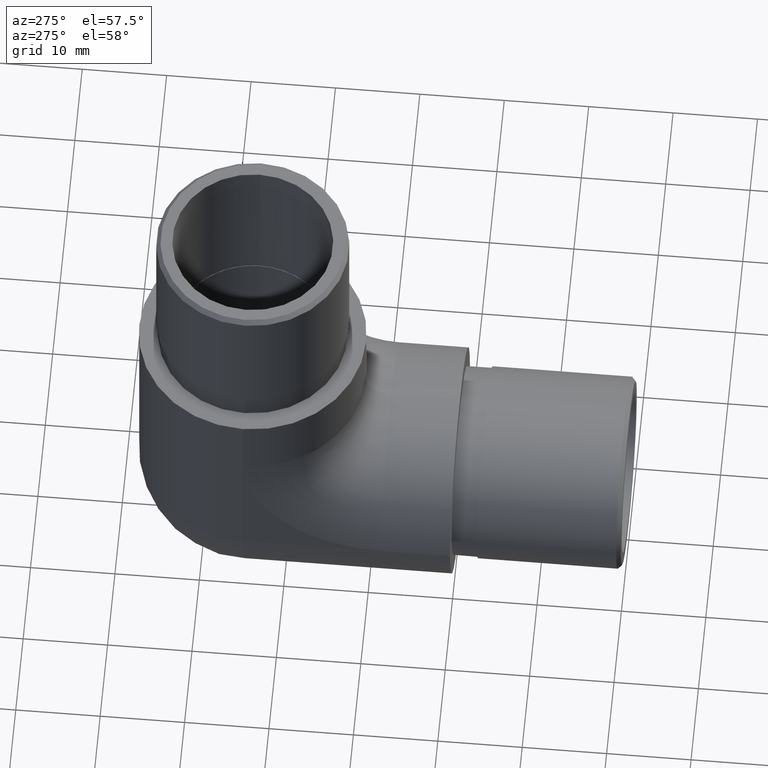
[diagram: clean part render]
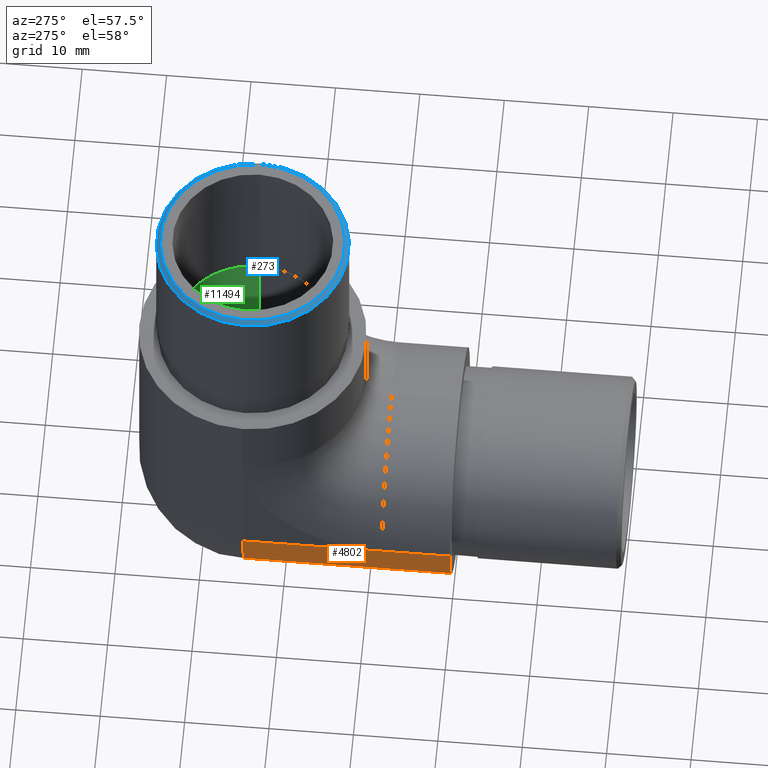
[diagram: same view with three faces highlighted in distinct colors, each labeled with its STEP entity id]
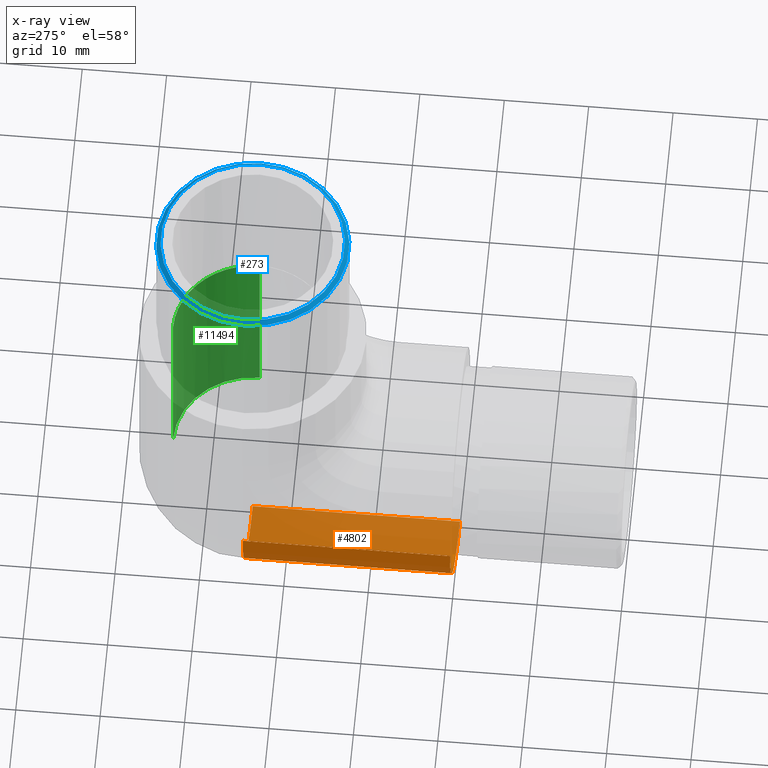
[diagram: x-ray of the same camera — body ghosted, the three highlighted faces saturated]
A machine part, auxiliary view with three faces highlighted in distinct colors.
The next image is the same camera in x-ray (body ghosted, the three faces saturated) — at least one of them is partly hidden behind the body in this view.
Their STEP definitions:

[orange] entity #4802 — the highlighted cylindrical surface (partial cylindrical patch) has radius 13.45 mm, axis along (0, 1, 0).
#6 = CARTESIAN_POINT ( 'NONE',  ( 1.734723475976807100E-015, 24.54999999999999700, -2.602085213965210200E-015 ) ) ;
#115 = CARTESIAN_POINT ( 'NONE',  ( 8.673617379884039400E-016, 0.0000000000000000000, -1.734723475976807100E-015 ) ) ;
#123 = VERTEX_POINT ( 'NONE', #3064 ) ;
#160 = VERTEX_POINT ( 'NONE', #924 ) ;
#340 = DIRECTION ( 'NONE',  ( 0.0000000000000000000, 0.0000000000000000000, 1.000000000000000000 ) ) ;
#924 = CARTESIAN_POINT ( 'NONE',  ( -1.734723475976807100E-015, 0.0000000000000000000, -13.45000000000000300 ) ) ;
#1179 = DIRECTION ( 'NONE',  ( -0.0000000000000000000, -1.000000000000000000, -0.0000000000000000000 ) ) ;
#1436 = CARTESIAN_POINT ( 'NONE',  ( -13.44999999999999900, 0.0000000000000000000, -8.673617379884032500E-016 ) ) ;
#1985 = CARTESIAN_POINT ( 'NONE',  ( -13.44999999999999900, 8.099999999999999600, -8.673617379884032500E-016 ) ) ;
#2006 = DIRECTION ( 'NONE',  ( -0.0000000000000000000, -1.000000000000000000, -0.0000000000000000000 ) ) ;
#2804 = EDGE_CURVE ( 'NONE', #160, #123, #6377, .T. ) ;
#2982 = CARTESIAN_POINT ( 'NONE',  ( -13.44999999999999900, 0.0000000000000000000, -8.673617379884032500E-016 ) ) ;
#3064 = CARTESIAN_POINT ( 'NONE',  ( -8.673617379884035500E-016, 24.54999999999999700, -13.45000000000000300 ) ) ;
#3077 = DIRECTION ( 'NONE',  ( 0.0000000000000000000, 0.0000000000000000000, -1.000000000000000000 ) ) ;
#3236 = EDGE_CURVE ( 'NONE', #5457, #160, #9323, .T. ) ;
#3501 = VECTOR ( 'NONE', #7268, 1000.000000000000000 ) ;
#3732 = EDGE_CURVE ( 'NONE', #8593, #5457, #13849, .T. ) ;
#4725 = EDGE_LOOP ( 'NONE', ( #10970, #5036, #8706, #11010, #5986 ) ) ;
#4802 = ADVANCED_FACE ( 'NONE', ( #11990 ), #9990, .T. ) ;
#4868 = DIRECTION ( 'NONE',  ( 0.0000000000000000000, 1.000000000000000000, 0.0000000000000000000 ) ) ;
#5036 = ORIENTED_EDGE ( 'NONE', *, *, #3236, .F. ) ;
#5457 = VERTEX_POINT ( 'NONE', #11449 ) ;
#5986 = ORIENTED_EDGE ( 'NONE', *, *, #7175, .T. ) ;
#6263 = LINE ( 'NONE', #1436, #11262 ) ;
#6308 = AXIS2_PLACEMENT_3D ( 'NONE', #6, #2006, #3077 ) ;
#6377 = LINE ( 'NONE', #8856, #12883 ) ;
#6779 = DIRECTION ( 'NONE',  ( -0.0000000000000000000, 1.000000000000000000, -0.0000000000000000000 ) ) ;
#7175 = EDGE_CURVE ( 'NONE', #13394, #123, #12603, .T. ) ;
#7268 = DIRECTION ( 'NONE',  ( 0.0000000000000000000, -1.000000000000000000, 0.0000000000000000000 ) ) ;
#7889 = AXIS2_PLACEMENT_3D ( 'NONE', #11284, #4868, #9324 ) ;
#8593 = VERTEX_POINT ( 'NONE', #1985 ) ;
#8706 = ORIENTED_EDGE ( 'NONE', *, *, #3732, .F. ) ;
#8856 = CARTESIAN_POINT ( 'NONE',  ( 1.734723475976807900E-015, 24.54999999999999700, -13.45000000000000100 ) ) ;
#9323 = CIRCLE ( 'NONE', #10916, 13.44999999999999900 ) ;
#9324 = DIRECTION ( 'NONE',  ( 0.0000000000000000000, 0.0000000000000000000, 1.000000000000000000 ) ) ;
#9990 = CYLINDRICAL_SURFACE ( 'NONE', #7889, 13.44999999999999900 ) ;
#10097 = DIRECTION ( 'NONE',  ( 0.0000000000000000000, -1.000000000000000000, 0.0000000000000000000 ) ) ;
#10562 = EDGE_CURVE ( 'NONE', #13394, #8593, #6263, .T. ) ;
#10916 = AXIS2_PLACEMENT_3D ( 'NONE', #115, #1179, #340 ) ;
#10970 = ORIENTED_EDGE ( 'NONE', *, *, #2804, .F. ) ;
#11010 = ORIENTED_EDGE ( 'NONE', *, *, #10562, .F. ) ;
#11262 = VECTOR ( 'NONE', #10097, 1000.000000000000000 ) ;
#11284 = CARTESIAN_POINT ( 'NONE',  ( 8.673617379884039400E-016, 38.00000000000000000, -1.734723475976807100E-015 ) ) ;
#11449 = CARTESIAN_POINT ( 'NONE',  ( -13.44999999999999900, 0.0000000000000000000, -3.469446951953614200E-015 ) ) ;
#11990 = FACE_OUTER_BOUND ( 'NONE', #4725, .T. ) ;
#12603 = CIRCLE ( 'NONE', #6308, 13.44999999999999900 ) ;
#12883 = VECTOR ( 'NONE', #6779, 1000.000000000000000 ) ;
#13360 = CARTESIAN_POINT ( 'NONE',  ( -13.44999999999999900, 24.54999999999999700, -1.734723475976806500E-015 ) ) ;
#13394 = VERTEX_POINT ( 'NONE', #13360 ) ;
#13849 = LINE ( 'NONE', #2982, #3501 ) ;

[blue] entity #273 — the highlighted conical surface has half-angle 45 deg.
#71 = AXIS2_PLACEMENT_3D ( 'NONE', #7825, #1427, #11027 ) ;
#273 = ADVANCED_FACE ( 'NONE', ( #5732, #1559 ), #5049, .T. ) ;
#737 = AXIS2_PLACEMENT_3D ( 'NONE', #6090, #9347, #5245 ) ;
#1427 = DIRECTION ( 'NONE',  ( 0.0000000000000000000, 0.0000000000000000000, -1.000000000000000000 ) ) ;
#1559 = FACE_BOUND ( 'NONE', #11967, .T. ) ;
#2421 = CIRCLE ( 'NONE', #11395, 10.89999999999999100 ) ;
#2583 = VERTEX_POINT ( 'NONE', #9170 ) ;
#2867 = DIRECTION ( 'NONE',  ( 1.000000000000000000, 0.0000000000000000000, 0.0000000000000000000 ) ) ;
#5049 = CONICAL_SURFACE ( 'NONE', #737, 10.89999999999999100, 0.7853981633974500600 ) ;
#5245 = DIRECTION ( 'NONE',  ( -1.000000000000000000, 0.0000000000000000000, 0.0000000000000000000 ) ) ;
#5732 = FACE_OUTER_BOUND ( 'NONE', #7027, .T. ) ;
#5901 = VERTEX_POINT ( 'NONE', #10344 ) ;
#6090 = CARTESIAN_POINT ( 'NONE',  ( 2.618207179355330000E-015, 24.54999999999999700, 44.55000000000000400 ) ) ;
#7027 = EDGE_LOOP ( 'NONE', ( #13269 ) ) ;
#7825 = CARTESIAN_POINT ( 'NONE',  ( 2.618207179355330000E-015, 24.54999999999999700, 44.04999999999999700 ) ) ;
#8442 = EDGE_CURVE ( 'NONE', #2583, #2583, #2421, .T. ) ;
#9170 = CARTESIAN_POINT ( 'NONE',  ( 10.89999999999999500, 24.54999999999999700, 44.55000000000000400 ) ) ;
#9347 = DIRECTION ( 'NONE',  ( 0.0000000000000000000, 0.0000000000000000000, -1.000000000000000000 ) ) ;
#10324 = DIRECTION ( 'NONE',  ( 0.0000000000000000000, 0.0000000000000000000, 1.000000000000000000 ) ) ;
#10344 = CARTESIAN_POINT ( 'NONE',  ( 11.40000000000000400, 24.54999999999999700, 44.04999999999999700 ) ) ;
#10369 = CARTESIAN_POINT ( 'NONE',  ( 2.618207179355330000E-015, 24.54999999999999700, 44.55000000000000400 ) ) ;
#10934 = EDGE_CURVE ( 'NONE', #5901, #5901, #13281, .T. ) ;
#11027 = DIRECTION ( 'NONE',  ( 1.000000000000000000, 0.0000000000000000000, 0.0000000000000000000 ) ) ;
#11395 = AXIS2_PLACEMENT_3D ( 'NONE', #10369, #10324, #2867 ) ;
#11967 = EDGE_LOOP ( 'NONE', ( #12408 ) ) ;
#12408 = ORIENTED_EDGE ( 'NONE', *, *, #8442, .F. ) ;
#13269 = ORIENTED_EDGE ( 'NONE', *, *, #10934, .F. ) ;
#13281 = CIRCLE ( 'NONE', #71, 11.40000000000000000 ) ;

[green] entity #11494 — the highlighted cylindrical surface (partial cylindrical patch) has radius 9.45 mm, axis along (0, -0, 1).
#132 = CARTESIAN_POINT ( 'NONE',  ( 9.449999999999997500, 24.54999999999999700, -13.44999999999999900 ) ) ;
#299 = DIRECTION ( 'NONE',  ( 1.000000000000000000, 0.0000000000000000000, 0.0000000000000000000 ) ) ;
#433 = CARTESIAN_POINT ( 'NONE',  ( -1.734723475976807100E-015, 24.54999999999999700, -13.44999999999999900 ) ) ;
#718 = CIRCLE ( 'NONE', #12352, 9.449999999999999300 ) ;
#757 = CYLINDRICAL_SURFACE ( 'NONE', #4876, 9.449999999999999300 ) ;
#877 = ORIENTED_EDGE ( 'NONE', *, *, #1989, .T. ) ;
#887 = VERTEX_POINT ( 'NONE', #9580 ) ;
#1610 = VECTOR ( 'NONE', #6459, 1000.000000000000000 ) ;
#1712 = DIRECTION ( 'NONE',  ( -1.000000000000000000, 0.0000000000000000000, 0.0000000000000000000 ) ) ;
#1752 = DIRECTION ( 'NONE',  ( -6.448786156047610700E-017, -6.123233995736766000E-017, -1.000000000000000000 ) ) ;
#1868 = DIRECTION ( 'NONE',  ( 6.448786156047610700E-017, -0.0000000000000000000, 1.000000000000000000 ) ) ;
#1989 = EDGE_CURVE ( 'NONE', #9614, #8295, #718, .T. ) ;
#2077 = DIRECTION ( 'NONE',  ( 6.448786156047610700E-017, -0.0000000000000000000, 1.000000000000000000 ) ) ;
#2479 = VERTEX_POINT ( 'NONE', #5185 ) ;
#2514 = CARTESIAN_POINT ( 'NONE',  ( 9.449999999999999300, 24.54999999999999700, -3.469446951953614200E-015 ) ) ;
#2747 = DIRECTION ( 'NONE',  ( -0.0000000000000000000, -0.0000000000000000000, 1.000000000000000000 ) ) ;
#2769 = VECTOR ( 'NONE', #1868, 1000.000000000000000 ) ;
#3107 = ORIENTED_EDGE ( 'NONE', *, *, #12309, .F. ) ;
#3745 = ORIENTED_EDGE ( 'NONE', *, *, #6803, .T. ) ;
#4848 = CARTESIAN_POINT ( 'NONE',  ( -1.734723475976807100E-015, 24.54999999999999700, -2.602085213965210600E-015 ) ) ;
#4876 = AXIS2_PLACEMENT_3D ( 'NONE', #433, #7703, #299 ) ;
#5065 = CIRCLE ( 'NONE', #6535, 9.449999999999999300 ) ;
#5185 = CARTESIAN_POINT ( 'NONE',  ( 9.449999999999999300, 24.54999999999999700, 16.44999999999999900 ) ) ;
#5603 = VECTOR ( 'NONE', #2077, 1000.000000000000000 ) ;
#5993 = DIRECTION ( 'NONE',  ( -1.000000000000000000, 0.0000000000000000000, 6.448786156047610700E-017 ) ) ;
#6459 = DIRECTION ( 'NONE',  ( 6.448786156047610700E-017, -0.0000000000000000000, 1.000000000000000000 ) ) ;
#6535 = AXIS2_PLACEMENT_3D ( 'NONE', #8059, #2747, #1712 ) ;
#6803 = EDGE_CURVE ( 'NONE', #8295, #2479, #12617, .T. ) ;
#7234 = CARTESIAN_POINT ( 'NONE',  ( -1.156077863379682700E-015, 34.00000000000000000, -13.44999999999999900 ) ) ;
#7369 = VERTEX_POINT ( 'NONE', #8907 ) ;
#7671 = ORIENTED_EDGE ( 'NONE', *, *, #9868, .T. ) ;
#7703 = DIRECTION ( 'NONE',  ( 6.448786156047610700E-017, -0.0000000000000000000, 1.000000000000000000 ) ) ;
#8059 = CARTESIAN_POINT ( 'NONE',  ( 7.158152633212852900E-016, 24.54999999999999700, 24.55000000000000400 ) ) ;
#8295 = VERTEX_POINT ( 'NONE', #2514 ) ;
#8638 = CARTESIAN_POINT ( 'NONE',  ( 9.449999999999997500, 24.54999999999999700, -13.45000000000000100 ) ) ;
#8907 = CARTESIAN_POINT ( 'NONE',  ( 9.449999999999999300, 24.54999999999999700, 24.55000000000000400 ) ) ;
#8934 = LINE ( 'NONE', #132, #5603 ) ;
#9266 = EDGE_LOOP ( 'NONE', ( #3107, #877, #3745, #7671, #9314 ) ) ;
#9314 = ORIENTED_EDGE ( 'NONE', *, *, #13794, .T. ) ;
#9580 = CARTESIAN_POINT ( 'NONE',  ( -2.264283898405775300E-016, 34.00000000000000000, 24.55000000000000100 ) ) ;
#9614 = VERTEX_POINT ( 'NONE', #12237 ) ;
#9868 = EDGE_CURVE ( 'NONE', #2479, #7369, #8934, .T. ) ;
#11494 = ADVANCED_FACE ( 'NONE', ( #12935 ), #757, .F. ) ;
#12237 = CARTESIAN_POINT ( 'NONE',  ( -1.809605391150266400E-015, 34.00000000000000000, -2.602085213965210600E-015 ) ) ;
#12309 = EDGE_CURVE ( 'NONE', #9614, #887, #13448, .T. ) ;
#12352 = AXIS2_PLACEMENT_3D ( 'NONE', #4848, #1752, #5993 ) ;
#12617 = LINE ( 'NONE', #8638, #1610 ) ;
#12935 = FACE_OUTER_BOUND ( 'NONE', #9266, .T. ) ;
#13448 = LINE ( 'NONE', #7234, #2769 ) ;
#13794 = EDGE_CURVE ( 'NONE', #7369, #887, #5065, .T. ) ;